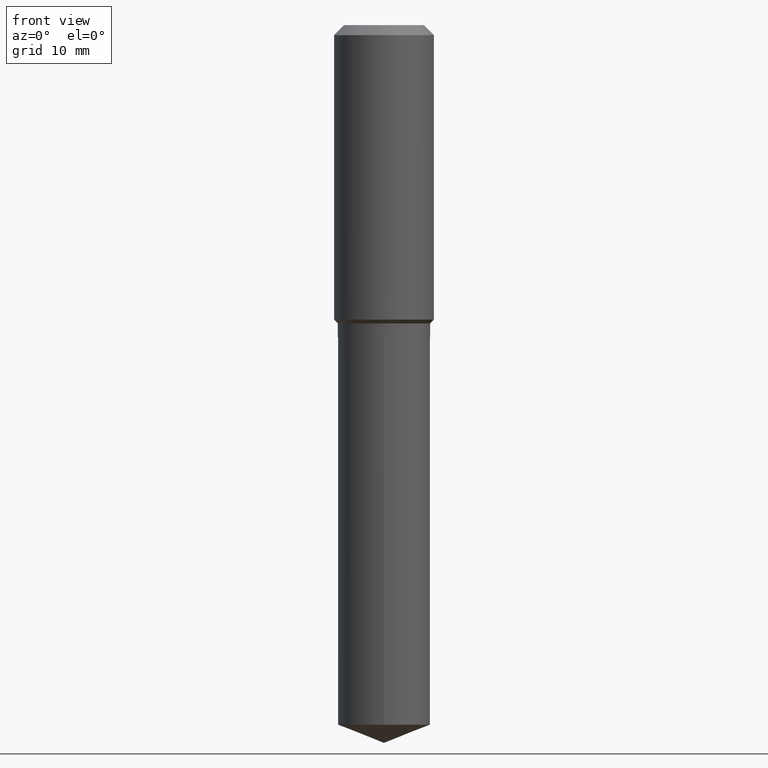
[diagram: clean part render]
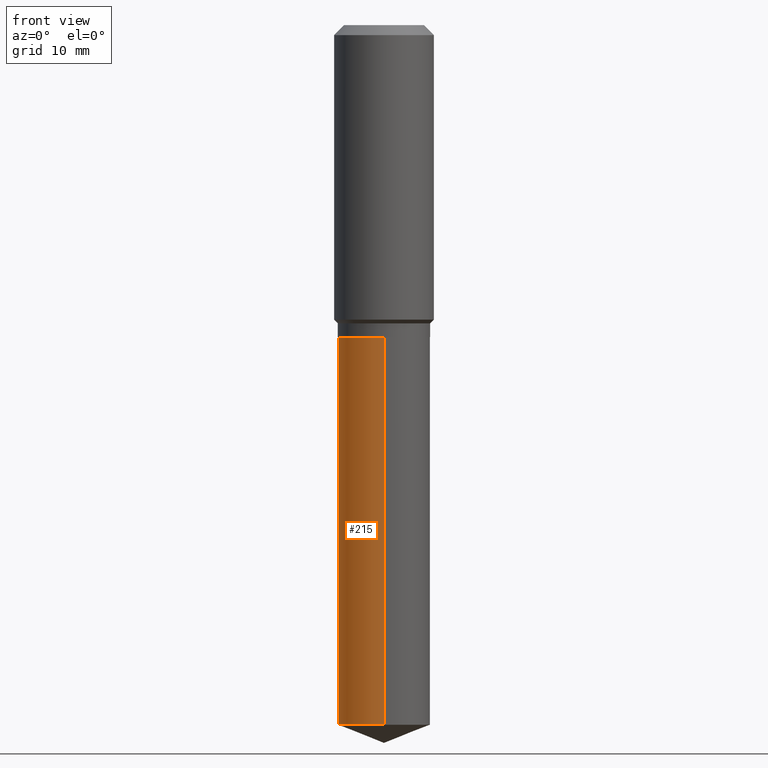
[diagram: same view with one face highlighted and labeled with its STEP entity id]
A machine part, front view. The second image highlights one B-rep face of the part: STEP entity #215.
In plain terms, the highlighted cylindrical surface (partial cylindrical patch) has radius 7.4003 mm, axis along (-0, 0, 1).
Its self-contained STEP definition (entity closure, byte-faithful):
#15 = DIRECTION ( 'NONE',  ( -6.982962677686265922E-15, -1.000000000000000000, 3.750606478344620614E-15 ) ) ;
#16 = EDGE_CURVE ( 'NONE', #98, #66, #206, .T. ) ;
#21 = CIRCLE ( 'NONE', #400, 0.2913499999999999979 ) ;
#29 = CARTESIAN_POINT ( 'NONE',  ( 1.079154912815724214E-28, -1.540718386847978114E-14, -4.412834182929587179 ) ) ;
#38 = ORIENTED_EDGE ( 'NONE', *, *, #273, .T. ) ;
#53 = DIRECTION ( 'NONE',  ( -2.445510039064079162E-29, 3.491422291013670313E-15, 1.000000000000000000 ) ) ;
#63 = CARTESIAN_POINT ( 'NONE',  ( 2.070166260637159556E-15, 0.2913499999999845658, -4.412834182929588067 ) ) ;
#66 = VERTEX_POINT ( 'NONE', #224 ) ;
#84 = LINE ( 'NONE', #194, #255 ) ;
#98 = VERTEX_POINT ( 'NONE', #217 ) ;
#100 = DIRECTION ( 'NONE',  ( -6.982962677686265922E-15, -1.000000000000000000, 3.750606478344620614E-15 ) ) ;
#141 = CARTESIAN_POINT ( 'NONE',  ( 4.813905344975440153E-29, -6.872981015512730130E-15, -1.968499999999999472 ) ) ;
#152 = VERTEX_POINT ( 'NONE', #445 ) ;
#191 = AXIS2_PLACEMENT_3D ( 'NONE', #469, #53, #15 ) ;
#194 = CARTESIAN_POINT ( 'NONE',  ( -2.034486176143845503E-15, -0.2913500000000068257, -1.968499999999998362 ) ) ;
#198 = AXIS2_PLACEMENT_3D ( 'NONE', #141, #483, #334 ) ;
#206 = CIRCLE ( 'NONE', #198, 0.2913499999999999979 ) ;
#215 = ADVANCED_FACE ( 'NONE', ( #272 ), #235, .T. ) ;
#217 = CARTESIAN_POINT ( 'NONE',  ( 2.070166260637159950E-15, 0.2913499999999931145, -1.968500000000000583 ) ) ;
#224 = CARTESIAN_POINT ( 'NONE',  ( -2.034486176143845503E-15, -0.2913500000000068257, -1.968499999999998362 ) ) ;
#227 = DIRECTION ( 'NONE',  ( -2.445510039064079162E-29, 3.491422291013670313E-15, 1.000000000000000000 ) ) ;
#235 = CYLINDRICAL_SURFACE ( 'NONE', #191, 0.2913499999999999979 ) ;
#244 = EDGE_LOOP ( 'NONE', ( #437, #421, #38, #252 ) ) ;
#252 = ORIENTED_EDGE ( 'NONE', *, *, #16, .F. ) ;
#255 = VECTOR ( 'NONE', #227, 39.37007874015748143 ) ;
#272 = FACE_OUTER_BOUND ( 'NONE', #244, .T. ) ;
#273 = EDGE_CURVE ( 'NONE', #152, #66, #84, .T. ) ;
#276 = VECTOR ( 'NONE', #414, 39.37007874015748143 ) ;
#319 = VERTEX_POINT ( 'NONE', #63 ) ;
#334 = DIRECTION ( 'NONE',  ( -6.982962677686265922E-15, -1.000000000000000000, 3.750606478344620614E-15 ) ) ;
#359 = EDGE_CURVE ( 'NONE', #319, #152, #21, .T. ) ;
#378 = CARTESIAN_POINT ( 'NONE',  ( 2.070166260637099602E-15, 0.2913499999999931145, -1.968500000000000583 ) ) ;
#400 = AXIS2_PLACEMENT_3D ( 'NONE', #29, #436, #100 ) ;
#414 = DIRECTION ( 'NONE',  ( -2.445510039064079162E-29, 3.491422291013670313E-15, 1.000000000000000000 ) ) ;
#415 = LINE ( 'NONE', #378, #276 ) ;
#421 = ORIENTED_EDGE ( 'NONE', *, *, #359, .T. ) ;
#436 = DIRECTION ( 'NONE',  ( -2.445510039064079162E-29, 3.491422291013670313E-15, 1.000000000000000000 ) ) ;
#437 = ORIENTED_EDGE ( 'NONE', *, *, #448, .F. ) ;
#445 = CARTESIAN_POINT ( 'NONE',  ( -2.034486176143785155E-15, -0.2913500000000153745, -4.412834182929586291 ) ) ;
#448 = EDGE_CURVE ( 'NONE', #319, #98, #415, .T. ) ;
#469 = CARTESIAN_POINT ( 'NONE',  ( 4.813905344975440153E-29, -6.872981015512730130E-15, -1.968499999999999472 ) ) ;
#483 = DIRECTION ( 'NONE',  ( -2.445510039064079162E-29, 3.491422291013670313E-15, 1.000000000000000000 ) ) ;